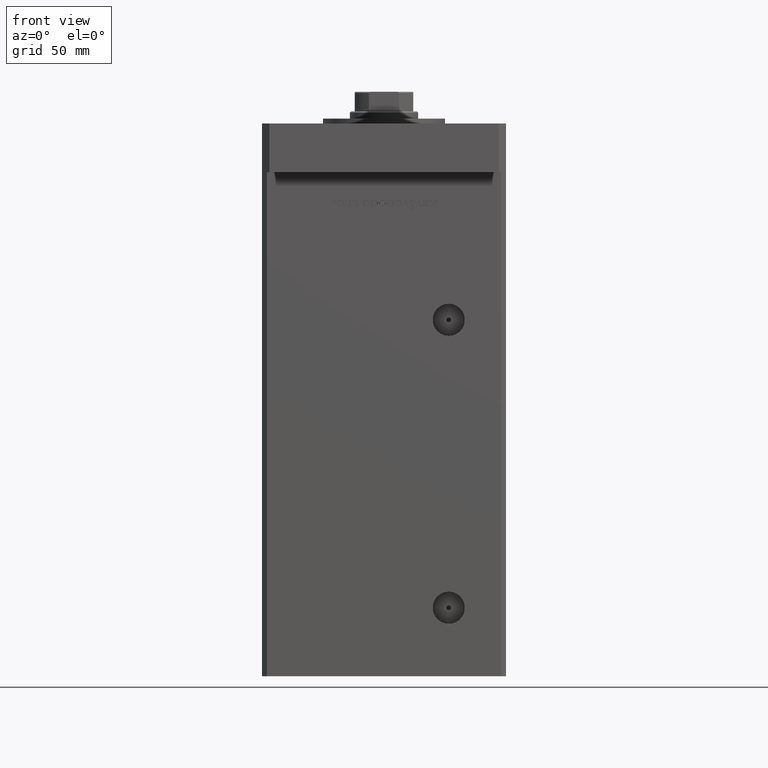
[diagram: clean part render]
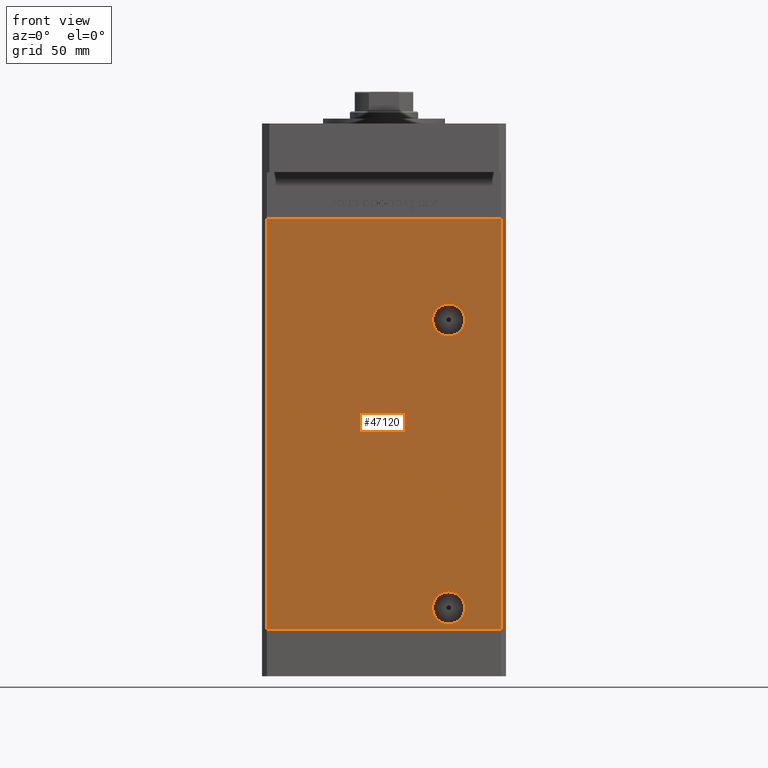
[diagram: same view with one face highlighted and labeled with its STEP entity id]
A machine part, front view. The second image highlights one B-rep face of the part: STEP entity #47120.
In plain terms, the highlighted planar face has unit normal (0, 1, 0).
Its self-contained STEP definition (entity closure, byte-faithful):
#1658 = VECTOR ( 'NONE', #51048, 1000.000000000000000 ) ;
#1766 = CARTESIAN_POINT ( 'NONE',  ( 26.49999999999997513, -43.50000000000000000, 133.5800000000000125 ) ) ;
#1799 = CIRCLE ( 'NONE', #42723, 6.579999999999994742 ) ;
#2394 = VERTEX_POINT ( 'NONE', #18933 ) ;
#3615 = VECTOR ( 'NONE', #53299, 1000.000000000000000 ) ;
#4378 = CARTESIAN_POINT ( 'NONE',  ( -47.99999999999998579, -43.50000000000000000, 168.5000000000000000 ) ) ;
#4817 = DIRECTION ( 'NONE',  ( 0.000000000000000000, -0.000000000000000000, 1.000000000000000000 ) ) ;
#5330 = DIRECTION ( 'NONE',  ( -0.000000000000000000, -0.000000000000000000, -1.000000000000000000 ) ) ;
#7742 = LINE ( 'NONE', #19212, #3615 ) ;
#8183 = ORIENTED_EDGE ( 'NONE', *, *, #16199, .T. ) ;
#8542 = CARTESIAN_POINT ( 'NONE',  ( 47.99999999999998579, -43.50000000000000000, 168.5000000000000000 ) ) ;
#8966 = CARTESIAN_POINT ( 'NONE',  ( 26.49999999999997513, -43.50000000000000000, 127.0000000000000000 ) ) ;
#9338 = ORIENTED_EDGE ( 'NONE', *, *, #29446, .T. ) ;
#10084 = ORIENTED_EDGE ( 'NONE', *, *, #18411, .F. ) ;
#10217 = CIRCLE ( 'NONE', #19792, 6.579999999999988525 ) ;
#13040 = VERTEX_POINT ( 'NONE', #1766 ) ;
#13669 = CARTESIAN_POINT ( 'NONE',  ( -47.99999999999998579, -43.50000000000000000, 168.5000000000000000 ) ) ;
#15113 = VERTEX_POINT ( 'NONE', #8542 ) ;
#15791 = CARTESIAN_POINT ( 'NONE',  ( 26.49999999999997513, -43.50000000000000000, 127.0000000000000000 ) ) ;
#16199 = EDGE_CURVE ( 'NONE', #29018, #22638, #46960, .T. ) ;
#16261 = DIRECTION ( 'NONE',  ( 0.000000000000000000, 1.000000000000000000, 0.000000000000000000 ) ) ;
#16633 = EDGE_LOOP ( 'NONE', ( #9338, #46864, #34240, #8183 ) ) ;
#17493 = VERTEX_POINT ( 'NONE', #48499 ) ;
#17860 = LINE ( 'NONE', #25796, #48394 ) ;
#18411 = EDGE_CURVE ( 'NONE', #26862, #2394, #47853, .T. ) ;
#18736 = EDGE_CURVE ( 'NONE', #29018, #15113, #30901, .T. ) ;
#18933 = CARTESIAN_POINT ( 'NONE',  ( 26.49999999999998934, -43.50000000000000000, 15.58000000000000362 ) ) ;
#19212 = CARTESIAN_POINT ( 'NONE',  ( -47.99999999999998579, -43.50000000000000000, 0.000000000000000000 ) ) ;
#19792 = AXIS2_PLACEMENT_3D ( 'NONE', #8966, #51225, #22038 ) ;
#20868 = EDGE_CURVE ( 'NONE', #2394, #26862, #1799, .T. ) ;
#20903 = CARTESIAN_POINT ( 'NONE',  ( -47.99999999999998579, -43.50000000000000000, 168.5000000000000000 ) ) ;
#22038 = DIRECTION ( 'NONE',  ( 0.000000000000000000, 0.000000000000000000, -1.000000000000000000 ) ) ;
#22445 = DIRECTION ( 'NONE',  ( 1.000000000000000000, 0.000000000000000000, 0.000000000000000000 ) ) ;
#22638 = VERTEX_POINT ( 'NONE', #40242 ) ;
#23333 = CARTESIAN_POINT ( 'NONE',  ( 47.99999999999998579, -43.50000000000000000, 0.000000000000000000 ) ) ;
#23521 = ORIENTED_EDGE ( 'NONE', *, *, #20868, .F. ) ;
#25068 = DIRECTION ( 'NONE',  ( -0.000000000000000000, 1.000000000000000000, -0.000000000000000000 ) ) ;
#25796 = CARTESIAN_POINT ( 'NONE',  ( 47.99999999999998579, -43.50000000000000000, 168.5000000000000000 ) ) ;
#26611 = CARTESIAN_POINT ( 'NONE',  ( 26.49999999999998934, -43.50000000000000000, 9.000000000000007105 ) ) ;
#26862 = VERTEX_POINT ( 'NONE', #51581 ) ;
#28345 = DIRECTION ( 'NONE',  ( 0.000000000000000000, 0.000000000000000000, -1.000000000000000000 ) ) ;
#28376 = AXIS2_PLACEMENT_3D ( 'NONE', #20903, #16261, #4817 ) ;
#29018 = VERTEX_POINT ( 'NONE', #4378 ) ;
#29446 = EDGE_CURVE ( 'NONE', #22638, #42431, #7742, .T. ) ;
#30637 = CARTESIAN_POINT ( 'NONE',  ( -47.99999999999998579, -43.50000000000000000, 168.5000000000000000 ) ) ;
#30901 = LINE ( 'NONE', #30637, #44391 ) ;
#33164 = FACE_BOUND ( 'NONE', #40442, .T. ) ;
#33437 = FACE_OUTER_BOUND ( 'NONE', #16633, .T. ) ;
#34240 = ORIENTED_EDGE ( 'NONE', *, *, #18736, .F. ) ;
#37517 = EDGE_LOOP ( 'NONE', ( #10084, #23521 ) ) ;
#37908 = ORIENTED_EDGE ( 'NONE', *, *, #49919, .T. ) ;
#38730 = AXIS2_PLACEMENT_3D ( 'NONE', #15791, #25068, #28345 ) ;
#40242 = CARTESIAN_POINT ( 'NONE',  ( -47.99999999999998579, -43.50000000000000000, 0.000000000000000000 ) ) ;
#40442 = EDGE_LOOP ( 'NONE', ( #48317, #37908 ) ) ;
#41041 = EDGE_CURVE ( 'NONE', #17493, #13040, #43946, .T. ) ;
#42176 = PLANE ( 'NONE',  #28376 ) ;
#42431 = VERTEX_POINT ( 'NONE', #23333 ) ;
#42445 = DIRECTION ( 'NONE',  ( 0.000000000000000000, 0.000000000000000000, -1.000000000000000000 ) ) ;
#42723 = AXIS2_PLACEMENT_3D ( 'NONE', #47547, #48361, #44004 ) ;
#43946 = CIRCLE ( 'NONE', #38730, 6.579999999999988525 ) ;
#44004 = DIRECTION ( 'NONE',  ( 0.000000000000000000, 0.000000000000000000, -1.000000000000000000 ) ) ;
#44391 = VECTOR ( 'NONE', #22445, 1000.000000000000000 ) ;
#45162 = EDGE_CURVE ( 'NONE', #15113, #42431, #17860, .T. ) ;
#46267 = DIRECTION ( 'NONE',  ( 0.000000000000000000, -1.000000000000000000, 0.000000000000000000 ) ) ;
#46864 = ORIENTED_EDGE ( 'NONE', *, *, #45162, .F. ) ;
#46960 = LINE ( 'NONE', #13669, #1658 ) ;
#47120 = ADVANCED_FACE ( 'NONE', ( #50372, #33437, #33164 ), #42176, .F. ) ;
#47547 = CARTESIAN_POINT ( 'NONE',  ( 26.49999999999998934, -43.50000000000000000, 9.000000000000007105 ) ) ;
#47853 = CIRCLE ( 'NONE', #53109, 6.579999999999994742 ) ;
#48317 = ORIENTED_EDGE ( 'NONE', *, *, #41041, .T. ) ;
#48361 = DIRECTION ( 'NONE',  ( 0.000000000000000000, -1.000000000000000000, 0.000000000000000000 ) ) ;
#48394 = VECTOR ( 'NONE', #5330, 1000.000000000000000 ) ;
#48499 = CARTESIAN_POINT ( 'NONE',  ( 26.49999999999997513, -43.50000000000000000, 120.4200000000000159 ) ) ;
#49919 = EDGE_CURVE ( 'NONE', #13040, #17493, #10217, .T. ) ;
#50372 = FACE_BOUND ( 'NONE', #37517, .T. ) ;
#51048 = DIRECTION ( 'NONE',  ( -0.000000000000000000, -0.000000000000000000, -1.000000000000000000 ) ) ;
#51225 = DIRECTION ( 'NONE',  ( -0.000000000000000000, 1.000000000000000000, -0.000000000000000000 ) ) ;
#51581 = CARTESIAN_POINT ( 'NONE',  ( 26.49999999999998934, -43.50000000000000000, 2.420000000000013252 ) ) ;
#53109 = AXIS2_PLACEMENT_3D ( 'NONE', #26611, #46267, #42445 ) ;
#53299 = DIRECTION ( 'NONE',  ( 1.000000000000000000, 0.000000000000000000, 0.000000000000000000 ) ) ;